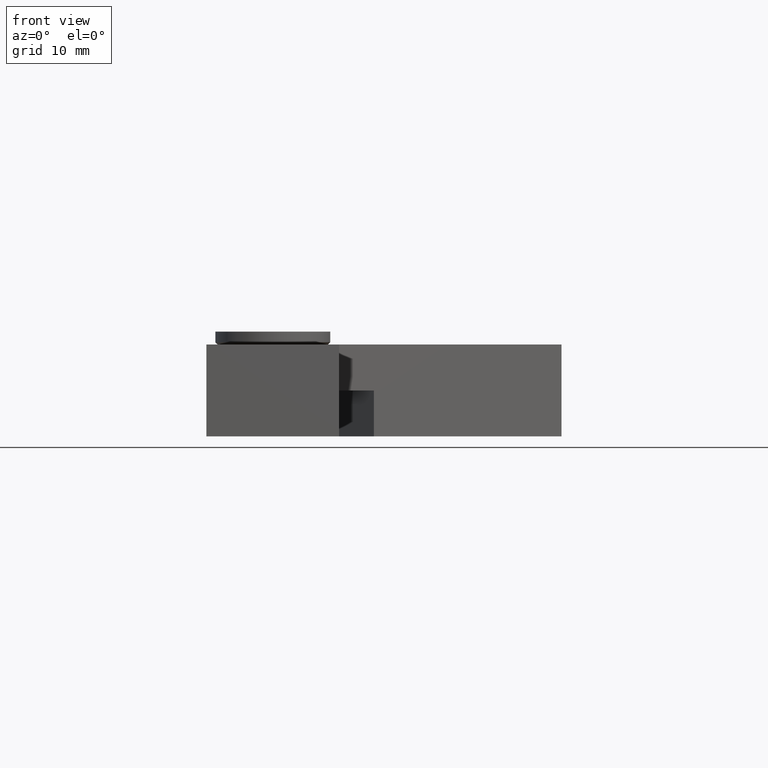
[diagram: clean part render]
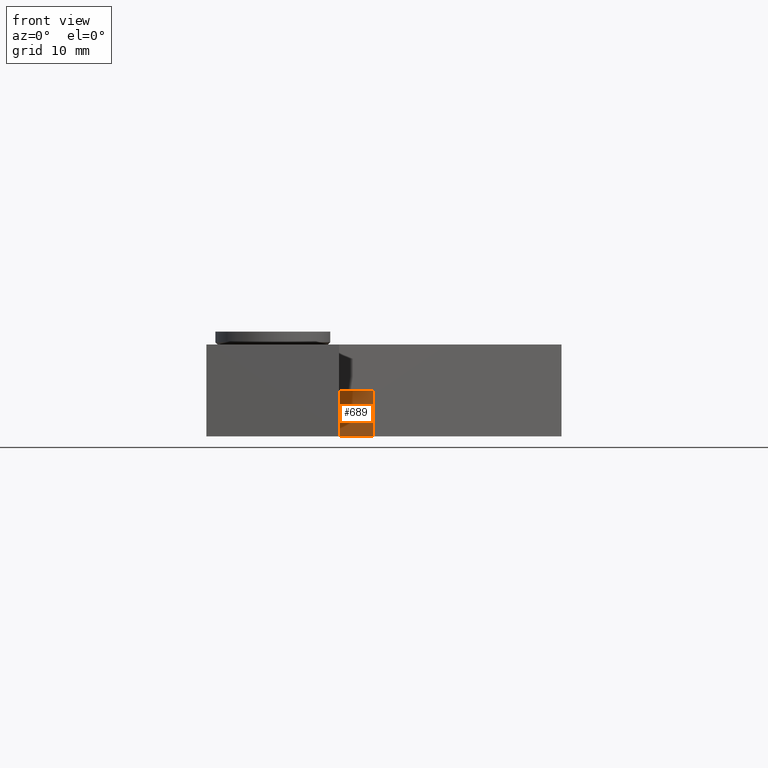
[diagram: same view with one face highlighted and labeled with its STEP entity id]
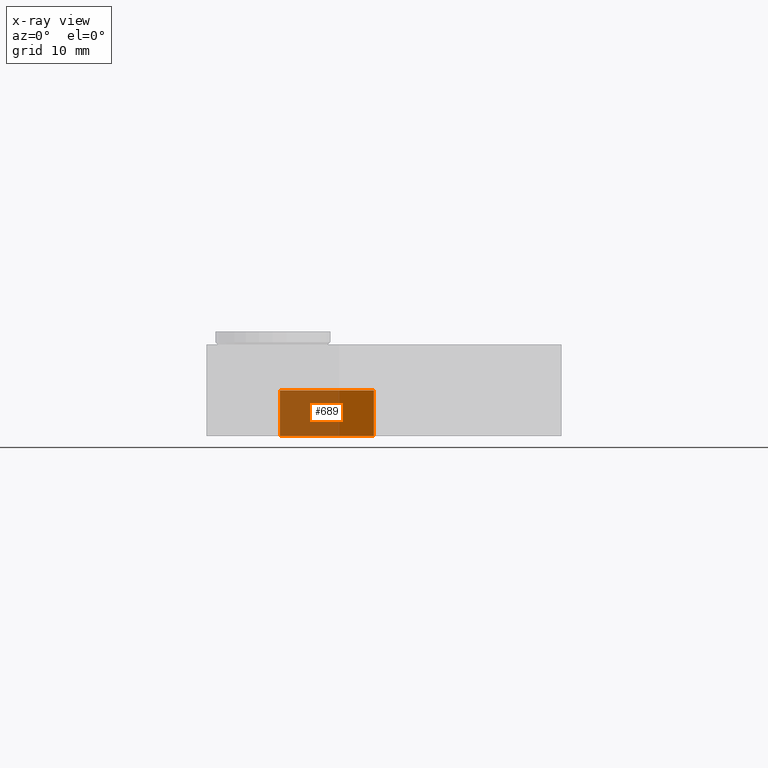
[diagram: x-ray of the same camera — body ghosted, the highlighted face saturated]
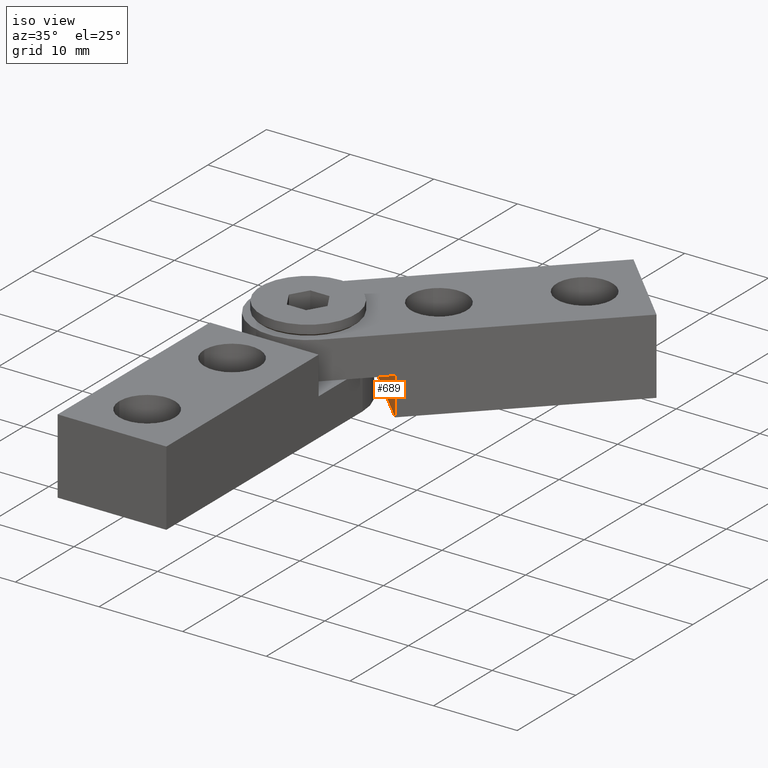
[diagram: same view with one face highlighted and labeled with its STEP entity id]
A machine part, front view. The second image highlights one B-rep face of the part: STEP entity #689.
The next image is the same camera in x-ray: the body ghosted, the highlighted face saturated — about 63% of this face is hidden behind the body in this view.
A second angle (iso view) of the same face is appended — the face is thin or edge-on in the first view.
In plain terms, the highlighted planar face has unit normal (0.7071, 0.7071, 0).
Its self-contained STEP definition (entity closure, byte-faithful):
#66=PLANE('',#823);
#94=FACE_OUTER_BOUND('',#136,.T.);
#136=EDGE_LOOP('',(#545,#546,#547,#548));
#187=LINE('',#1157,#243);
#188=LINE('',#1159,#244);
#189=LINE('',#1161,#245);
#190=LINE('',#1162,#246);
#243=VECTOR('',#954,10.);
#244=VECTOR('',#955,10.);
#245=VECTOR('',#956,10.);
#246=VECTOR('',#957,10.);
#337=VERTEX_POINT('',#1155);
#338=VERTEX_POINT('',#1156);
#339=VERTEX_POINT('',#1158);
#340=VERTEX_POINT('',#1160);
#415=EDGE_CURVE('',#337,#338,#187,.T.);
#416=EDGE_CURVE('',#339,#337,#188,.T.);
#417=EDGE_CURVE('',#339,#340,#189,.T.);
#418=EDGE_CURVE('',#338,#340,#190,.T.);
#545=ORIENTED_EDGE('',*,*,#415,.F.);
#546=ORIENTED_EDGE('',*,*,#416,.F.);
#547=ORIENTED_EDGE('',*,*,#417,.T.);
#548=ORIENTED_EDGE('',*,*,#418,.F.);
#689=ADVANCED_FACE('',(#94),#66,.F.);
#823=AXIS2_PLACEMENT_3D('',#1154,#952,#953);
#952=DIRECTION('center_axis',(1.70803542250024E-16,-1.,0.));
#953=DIRECTION('ref_axis',(-1.,-1.70803542250024E-16,0.));
#954=DIRECTION('',(-1.,-1.70803542250024E-16,0.));
#955=DIRECTION('',(0.,0.,1.));
#956=DIRECTION('',(-1.,-1.70803542250024E-16,0.));
#957=DIRECTION('',(0.,0.,-1.));
#1154=CARTESIAN_POINT('Origin',(6.5,-7.5,9.));
#1155=CARTESIAN_POINT('',(6.5,-7.5,9.));
#1156=CARTESIAN_POINT('',(-6.5,-7.5,9.));
#1157=CARTESIAN_POINT('',(3.25,-7.5,9.));
#1158=CARTESIAN_POINT('',(6.5,-7.5,4.5));
#1159=CARTESIAN_POINT('',(6.5,-7.5,4.5));
#1160=CARTESIAN_POINT('',(-6.5,-7.5,4.5));
#1161=CARTESIAN_POINT('',(-6.5,-7.5,4.5));
#1162=CARTESIAN_POINT('',(-6.5,-7.5,4.5));